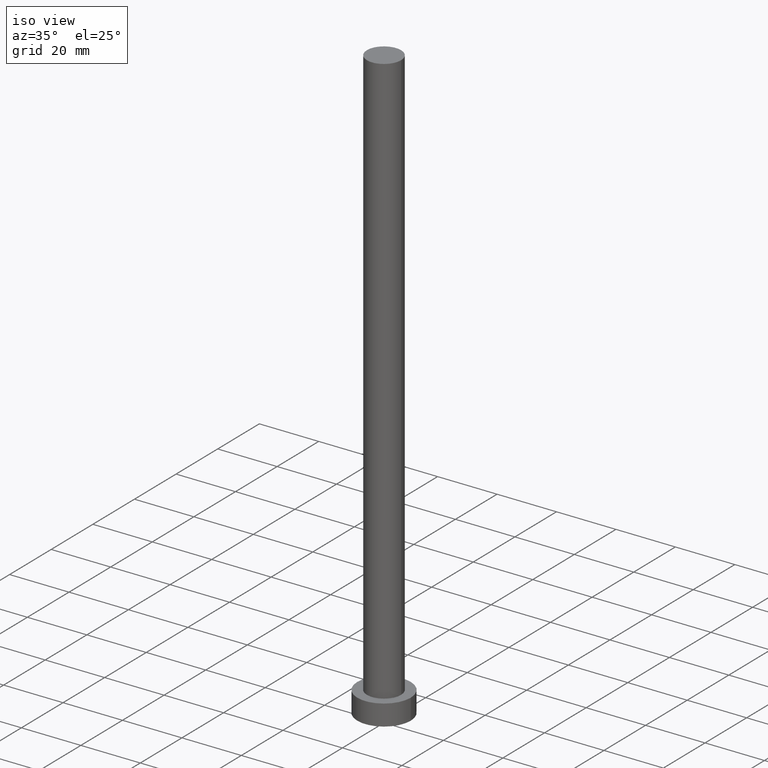
[diagram: clean part render]
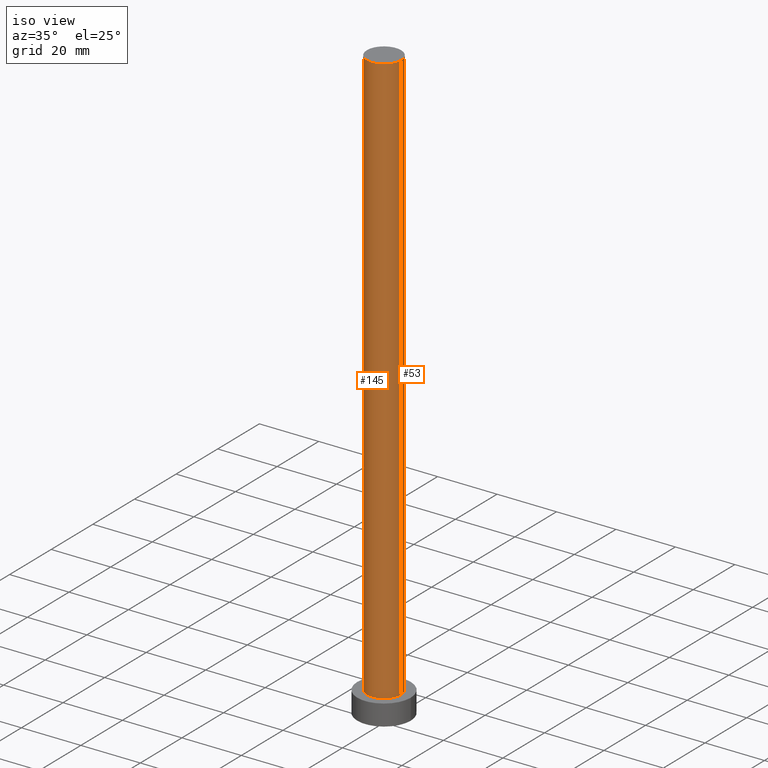
[diagram: same view with one multi-face feature highlighted, each face labeled with its STEP entity id]
A machine part, iso view. The highlighted faces form ONE feature: a constant-radius fillet chain: 2 tangent blend faces with common blend radius 5.75 mm. The faces share edges in the B-rep.
Their STEP definitions:
[1] entity #53 (Cylinder):
#9 = CARTESIAN_POINT ( 'NONE',  ( 0.000000000000000000, 0.000000000000000000, 200.0000000000000000 ) ) ;
#11 = CIRCLE ( 'NONE', #82, 5.750000000000000000 ) ;
#12 = CARTESIAN_POINT ( 'NONE',  ( -5.750000000000000000, 0.000000000000000000, 200.0000000000000000 ) ) ;
#27 = AXIS2_PLACEMENT_3D ( 'NONE', #190, #168, #233 ) ;
#29 = VERTEX_POINT ( 'NONE', #173 ) ;
#34 = VECTOR ( 'NONE', #207, 1000.000000000000000 ) ;
#41 = ORIENTED_EDGE ( 'NONE', *, *, #217, .F. ) ;
#48 = DIRECTION ( 'NONE',  ( 0.000000000000000000, 0.000000000000000000, 1.000000000000000000 ) ) ;
#53 = ADVANCED_FACE ( 'NONE', ( #96 ), #157, .T. ) ;
#71 = ORIENTED_EDGE ( 'NONE', *, *, #163, .T. ) ;
#81 = LINE ( 'NONE', #99, #101 ) ;
#82 = AXIS2_PLACEMENT_3D ( 'NONE', #192, #48, #89 ) ;
#87 = ORIENTED_EDGE ( 'NONE', *, *, #140, .T. ) ;
#89 = DIRECTION ( 'NONE',  ( 1.000000000000000000, 0.000000000000000000, 0.000000000000000000 ) ) ;
#96 = FACE_OUTER_BOUND ( 'NONE', #178, .T. ) ;
#98 = VERTEX_POINT ( 'NONE', #182 ) ;
#99 = CARTESIAN_POINT ( 'NONE',  ( 5.750000000000000000, 7.041719095097280880E-16, 200.0000000000000000 ) ) ;
#101 = VECTOR ( 'NONE', #211, 1000.000000000000000 ) ;
#114 = DIRECTION ( 'NONE',  ( -1.000000000000000000, 0.000000000000000000, 0.000000000000000000 ) ) ;
#121 = EDGE_CURVE ( 'NONE', #98, #144, #230, .T. ) ;
#129 = CIRCLE ( 'NONE', #27, 5.750000000000000000 ) ;
#140 = EDGE_CURVE ( 'NONE', #29, #161, #81, .T. ) ;
#144 = VERTEX_POINT ( 'NONE', #183 ) ;
#157 = CYLINDRICAL_SURFACE ( 'NONE', #214, 5.750000000000000000 ) ;
#161 = VERTEX_POINT ( 'NONE', #189 ) ;
#163 = EDGE_CURVE ( 'NONE', #161, #144, #129, .T. ) ;
#166 = ORIENTED_EDGE ( 'NONE', *, *, #121, .F. ) ;
#168 = DIRECTION ( 'NONE',  ( 0.000000000000000000, 0.000000000000000000, 1.000000000000000000 ) ) ;
#173 = CARTESIAN_POINT ( 'NONE',  ( 5.750000000000000000, 7.041719095097280880E-16, 200.0000000000000000 ) ) ;
#178 = EDGE_LOOP ( 'NONE', ( #41, #87, #71, #166 ) ) ;
#182 = CARTESIAN_POINT ( 'NONE',  ( -5.750000000000000000, 0.000000000000000000, 200.0000000000000000 ) ) ;
#183 = CARTESIAN_POINT ( 'NONE',  ( -5.750000000000000000, 0.000000000000000000, 7.000000000000000000 ) ) ;
#189 = CARTESIAN_POINT ( 'NONE',  ( 5.750000000000000000, 7.041719095097280880E-16, 7.000000000000000000 ) ) ;
#190 = CARTESIAN_POINT ( 'NONE',  ( 0.000000000000000000, 0.000000000000000000, 7.000000000000000000 ) ) ;
#192 = CARTESIAN_POINT ( 'NONE',  ( 0.000000000000000000, 0.000000000000000000, 200.0000000000000000 ) ) ;
#207 = DIRECTION ( 'NONE',  ( -0.000000000000000000, -0.000000000000000000, -1.000000000000000000 ) ) ;
#211 = DIRECTION ( 'NONE',  ( -0.000000000000000000, -0.000000000000000000, -1.000000000000000000 ) ) ;
#214 = AXIS2_PLACEMENT_3D ( 'NONE', #9, #242, #114 ) ;
#217 = EDGE_CURVE ( 'NONE', #29, #98, #11, .T. ) ;
#230 = LINE ( 'NONE', #12, #34 ) ;
#233 = DIRECTION ( 'NONE',  ( 1.000000000000000000, 0.000000000000000000, 0.000000000000000000 ) ) ;
#242 = DIRECTION ( 'NONE',  ( -0.000000000000000000, -0.000000000000000000, -1.000000000000000000 ) ) ;
[2] entity #145 (Cylinder):
#12 = CARTESIAN_POINT ( 'NONE',  ( -5.750000000000000000, 0.000000000000000000, 200.0000000000000000 ) ) ;
#14 = AXIS2_PLACEMENT_3D ( 'NONE', #150, #125, #169 ) ;
#29 = VERTEX_POINT ( 'NONE', #173 ) ;
#31 = DIRECTION ( 'NONE',  ( -1.000000000000000000, 0.000000000000000000, 0.000000000000000000 ) ) ;
#33 = AXIS2_PLACEMENT_3D ( 'NONE', #100, #186, #162 ) ;
#34 = VECTOR ( 'NONE', #207, 1000.000000000000000 ) ;
#42 = DIRECTION ( 'NONE',  ( -0.000000000000000000, -0.000000000000000000, -1.000000000000000000 ) ) ;
#61 = CARTESIAN_POINT ( 'NONE',  ( 0.000000000000000000, 0.000000000000000000, 200.0000000000000000 ) ) ;
#81 = LINE ( 'NONE', #99, #101 ) ;
#98 = VERTEX_POINT ( 'NONE', #182 ) ;
#99 = CARTESIAN_POINT ( 'NONE',  ( 5.750000000000000000, 7.041719095097280880E-16, 200.0000000000000000 ) ) ;
#100 = CARTESIAN_POINT ( 'NONE',  ( 0.000000000000000000, 0.000000000000000000, 7.000000000000000000 ) ) ;
#101 = VECTOR ( 'NONE', #211, 1000.000000000000000 ) ;
#108 = ORIENTED_EDGE ( 'NONE', *, *, #135, .T. ) ;
#119 = ORIENTED_EDGE ( 'NONE', *, *, #140, .F. ) ;
#121 = EDGE_CURVE ( 'NONE', #98, #144, #230, .T. ) ;
#125 = DIRECTION ( 'NONE',  ( 0.000000000000000000, 0.000000000000000000, 1.000000000000000000 ) ) ;
#135 = EDGE_CURVE ( 'NONE', #144, #161, #181, .T. ) ;
#140 = EDGE_CURVE ( 'NONE', #29, #161, #81, .T. ) ;
#144 = VERTEX_POINT ( 'NONE', #183 ) ;
#145 = ADVANCED_FACE ( 'NONE', ( #209 ), #246, .T. ) ;
#150 = CARTESIAN_POINT ( 'NONE',  ( 0.000000000000000000, 0.000000000000000000, 200.0000000000000000 ) ) ;
#152 = EDGE_CURVE ( 'NONE', #98, #29, #219, .T. ) ;
#161 = VERTEX_POINT ( 'NONE', #189 ) ;
#162 = DIRECTION ( 'NONE',  ( 1.000000000000000000, 0.000000000000000000, 0.000000000000000000 ) ) ;
#169 = DIRECTION ( 'NONE',  ( 1.000000000000000000, 0.000000000000000000, 0.000000000000000000 ) ) ;
#173 = CARTESIAN_POINT ( 'NONE',  ( 5.750000000000000000, 7.041719095097280880E-16, 200.0000000000000000 ) ) ;
#180 = AXIS2_PLACEMENT_3D ( 'NONE', #61, #42, #31 ) ;
#181 = CIRCLE ( 'NONE', #33, 5.750000000000000000 ) ;
#182 = CARTESIAN_POINT ( 'NONE',  ( -5.750000000000000000, 0.000000000000000000, 200.0000000000000000 ) ) ;
#183 = CARTESIAN_POINT ( 'NONE',  ( -5.750000000000000000, 0.000000000000000000, 7.000000000000000000 ) ) ;
#186 = DIRECTION ( 'NONE',  ( 0.000000000000000000, 0.000000000000000000, 1.000000000000000000 ) ) ;
#189 = CARTESIAN_POINT ( 'NONE',  ( 5.750000000000000000, 7.041719095097280880E-16, 7.000000000000000000 ) ) ;
#207 = DIRECTION ( 'NONE',  ( -0.000000000000000000, -0.000000000000000000, -1.000000000000000000 ) ) ;
#209 = FACE_OUTER_BOUND ( 'NONE', #234, .T. ) ;
#211 = DIRECTION ( 'NONE',  ( -0.000000000000000000, -0.000000000000000000, -1.000000000000000000 ) ) ;
#219 = CIRCLE ( 'NONE', #14, 5.750000000000000000 ) ;
#225 = ORIENTED_EDGE ( 'NONE', *, *, #152, .F. ) ;
#230 = LINE ( 'NONE', #12, #34 ) ;
#234 = EDGE_LOOP ( 'NONE', ( #119, #225, #244, #108 ) ) ;
#244 = ORIENTED_EDGE ( 'NONE', *, *, #121, .T. ) ;
#246 = CYLINDRICAL_SURFACE ( 'NONE', #180, 5.750000000000000000 ) ;